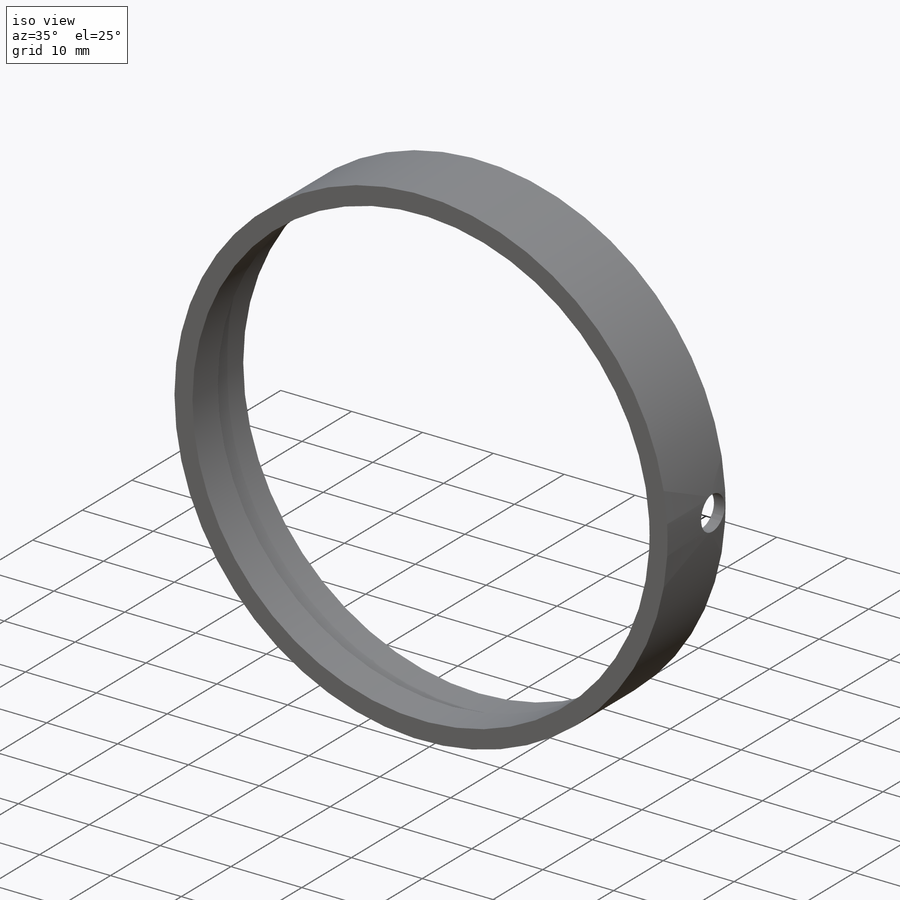
[diagram: iso view]
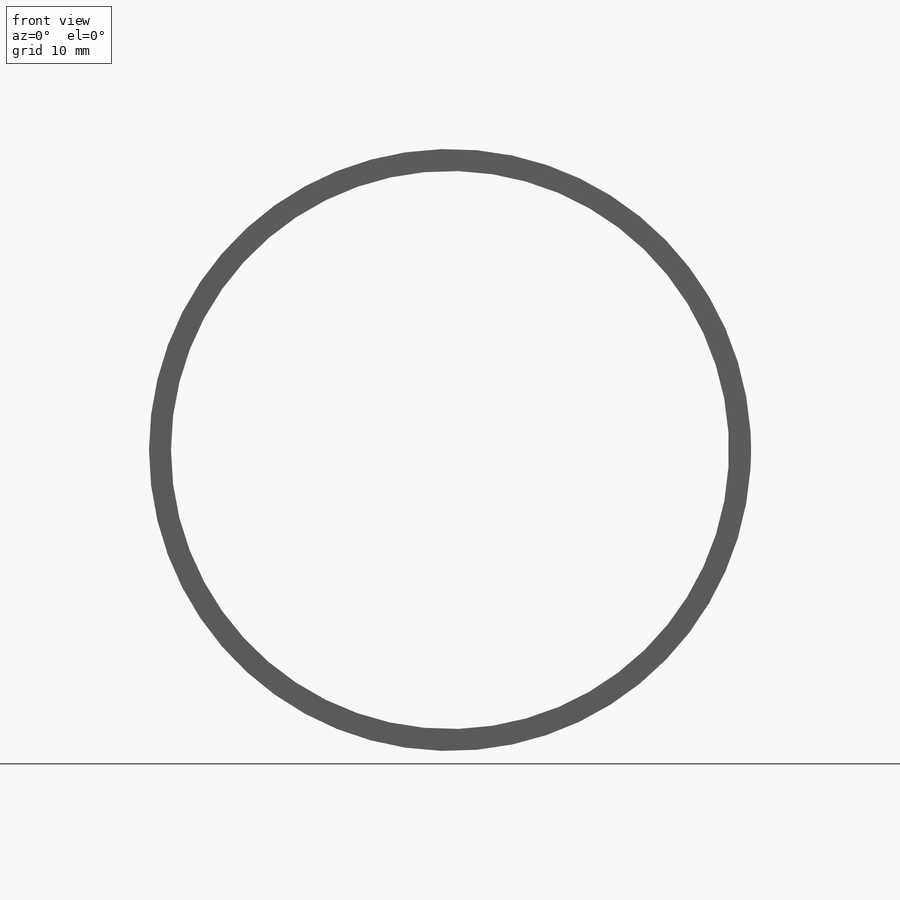
[diagram: front view]
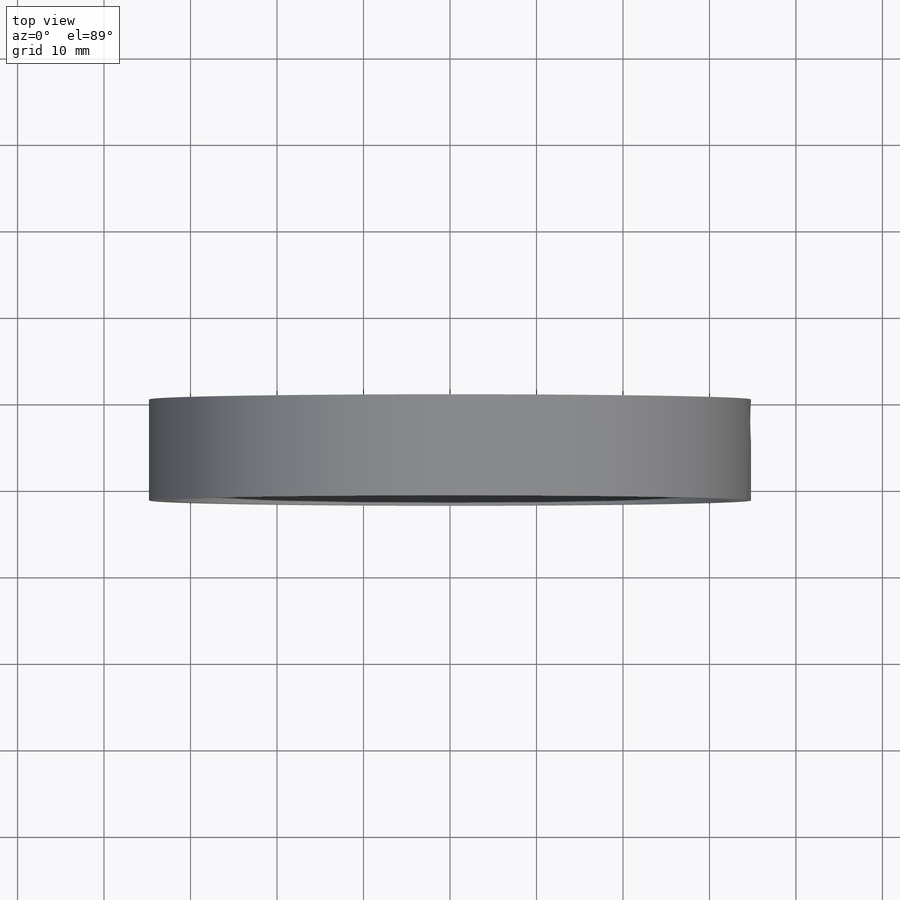
[diagram: top view]
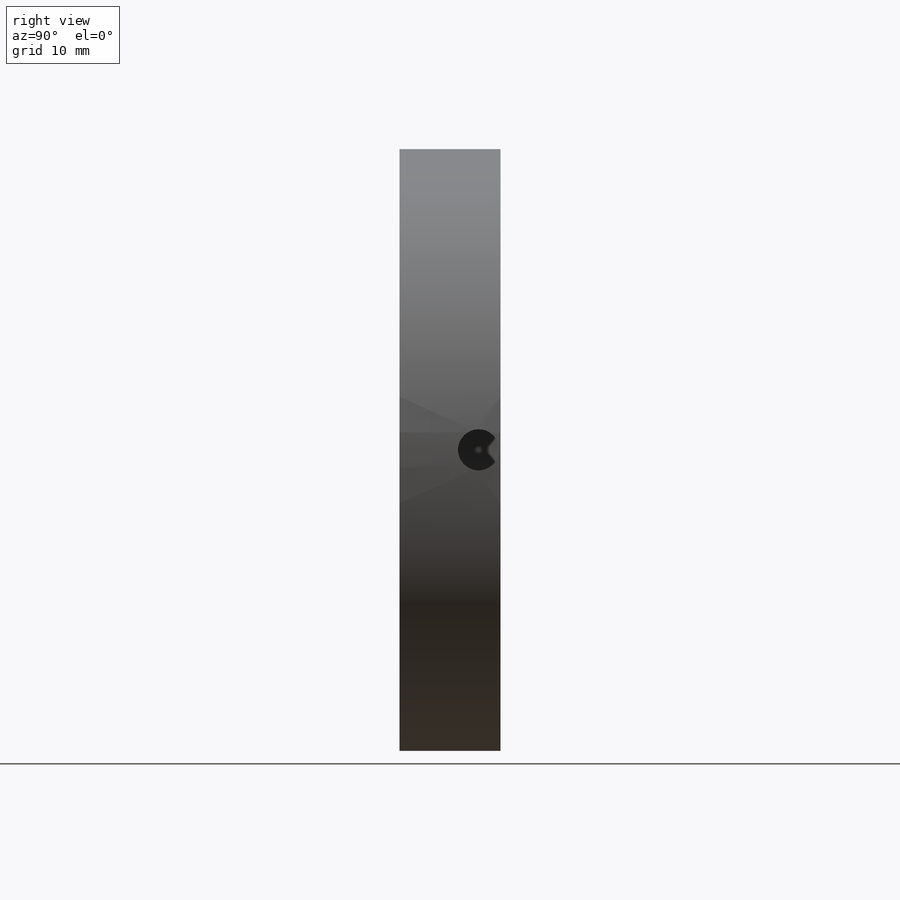
[diagram: right view]
SOLIDWORKS PART (.sldprt)
format: sldprt  version: not decoded by parser v0  size: 183,808 bytes
history: native  units: mm
features: sketch x4, material x1, extrude x1, hole x1, cut_extrude x1 (+13 scaffold rows collapsed)
feature tree (21):
  scaffold x13  (default folders/planes/origin — collapsed)
  material  "Material <not specified>"
  sketch  "Sketch1"  dims[D1=69.596mm D2=2.54mm]
  extrude  "Boss-Extrude1"  Depth=11.684mm
  hole  "3/16 (0.1875) Diameter Hole1"  Diameter=4.7625mm Depth=54.102mm
  sketch  "3DSketch1"
  sketch  "Sketch2"  dims[hole-wizard template sketch: 47 standard entries collapsed; hole parameters kept: c15.Hole Depth=54.102mm c15.D3=~14.816244mm c15.Drill Angle=118.0deg]
  sketch  "Sketch3"  dims[D1=1.016mm]
  cut_extrude  "Cut-Extrude1"  Depth=6.604mm
decode coverage: 6 of 7 modeling features carry decoded parameters
note: ~ marks probable driven/reference dimensions
note: suppression state not decoded; provenance and decode notes live in map.json
